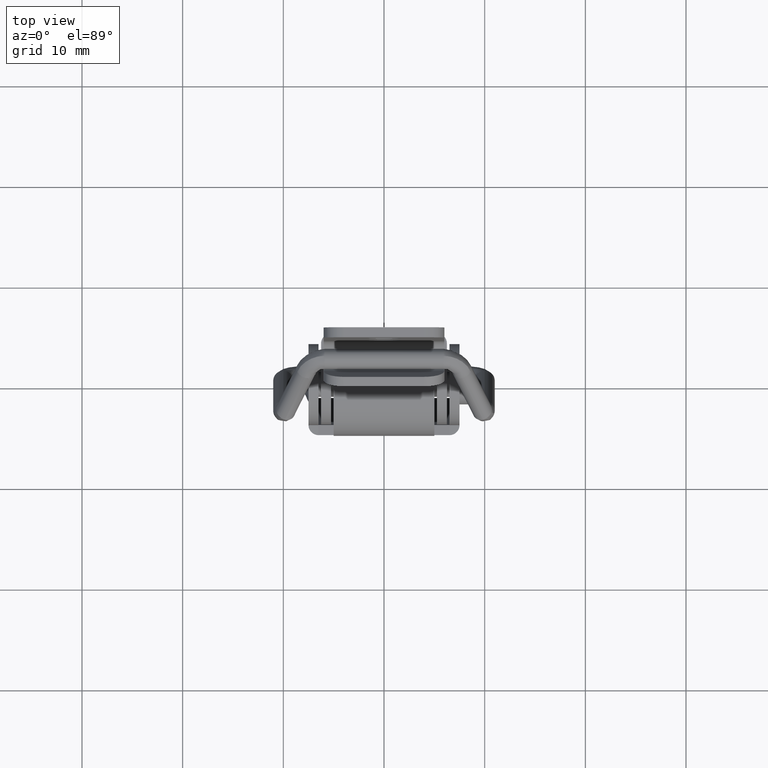
[diagram: clean part render]
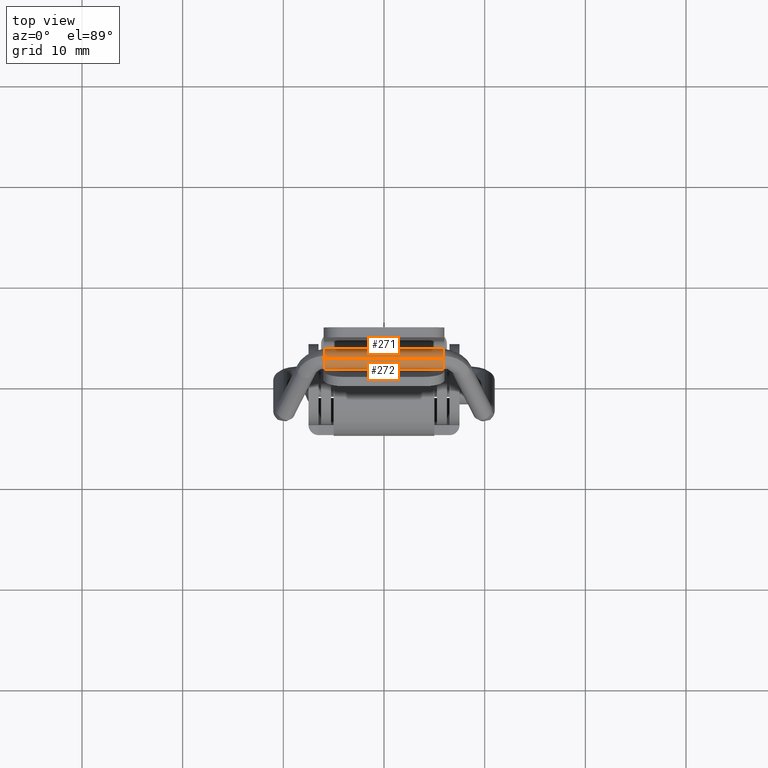
[diagram: same view with one multi-face feature highlighted, each face labeled with its STEP entity id]
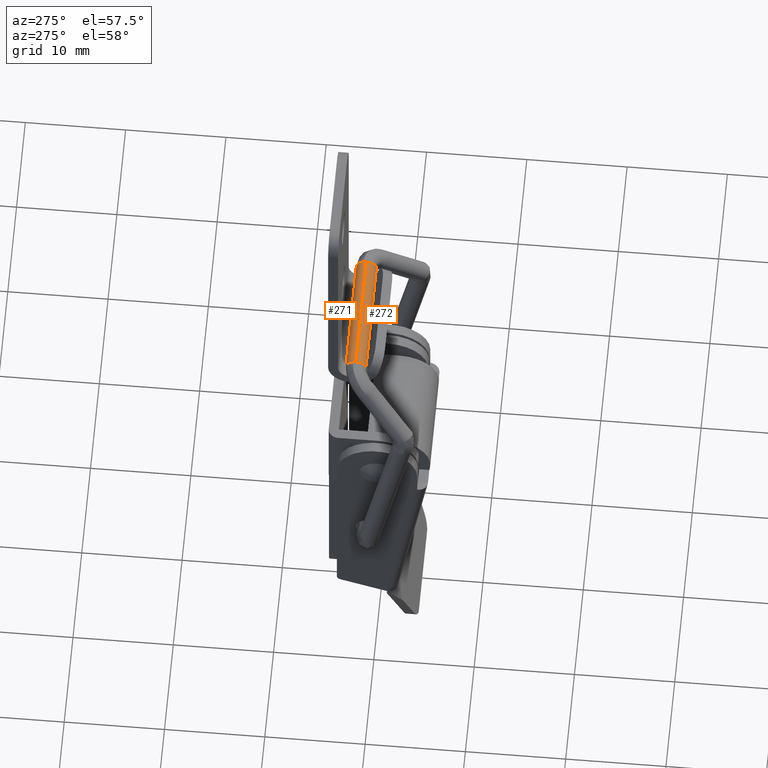
[diagram: same view with one multi-face feature highlighted, each face labeled with its STEP entity id]
A machine part, top view. The highlighted faces form ONE feature: a constant-radius fillet chain: 2 tangent blend faces with common blend radius 1 mm. The faces share edges in the B-rep.
A second angle (auxiliary view) of the same feature is appended — it is thin or edge-on in the first view.
Their STEP definitions:
[1] entity #272 (Cylinder):
#272=ADVANCED_FACE('',(#1188),#1187,.T.);
#1187=CYLINDRICAL_SURFACE('',#2476,1.00000000000E+00);
#1188=FACE_OUTER_BOUND('',#2477,.T.);
#2473=CARTESIAN_POINT('',(-5.90590531382E+00,-2.01829030919E-08,5.76952964570E-08));
#2474=DIRECTION('',(-1.00000000000E+00,6.47935677436E-13,7.26675753448E-13));
#2475=DIRECTION('',(7.26675753448E-13,-0.00000000000E+00,1.00000000000E+00));
#2476=AXIS2_PLACEMENT_3D('',#2473,#2474,#2475);
#2477=EDGE_LOOP('',(#4070,#4071,#4072,#4073,#4074,#4075));
#4070=ORIENTED_EDGE('',*,*,#4524,.F.);
#4071=ORIENTED_EDGE('',*,*,#4525,.F.);
#4072=ORIENTED_EDGE('',*,*,#4520,.T.);
#4073=ORIENTED_EDGE('',*,*,#4526,.T.);
#4074=ORIENTED_EDGE('',*,*,#4527,.T.);
#4075=ORIENTED_EDGE('',*,*,#4523,.F.);
#4520=EDGE_CURVE('',#6208,#6201,#6209,.T.);
#4523=EDGE_CURVE('',#6222,#6193,#6229,.T.);
#4524=EDGE_CURVE('',#6235,#6222,#6236,.T.);
#4525=EDGE_CURVE('',#6208,#6235,#6242,.T.);
#4526=EDGE_CURVE('',#6201,#6248,#6249,.T.);
#4527=EDGE_CURVE('',#6248,#6193,#6255,.T.);
#6193=VERTEX_POINT('',#7904);
#6201=VERTEX_POINT('',#7916);
#6208=VERTEX_POINT('',#7921);
#6209=(BOUNDED_CURVE() B_SPLINE_CURVE(1,(#7922,#7923),.UNSPECIFIED.,.F.,.F.) B_SPLINE_CURVE_WITH_KNOTS((2,2),(8.33333343261E-02,9.16666667006E-01),.UNSPECIFIED.) CURVE() GEOMETRIC_REPRESENTATION_ITEM() RATIONAL_B_SPLINE_CURVE((1.00000000000E+00,1.00000000000E+00)) REPRESENTATION_ITEM('') );
#6222=VERTEX_POINT('',#7929);
#6229=(BOUNDED_CURVE() B_SPLINE_CURVE(1,(#7940,#7941),.UNSPECIFIED.,.F.,.F.) B_SPLINE_CURVE_WITH_KNOTS((2,2),(8.33333333334E-02,9.16666666667E-01),.UNSPECIFIED.) CURVE() GEOMETRIC_REPRESENTATION_ITEM() RATIONAL_B_SPLINE_CURVE((7.50000000000E-01,7.50000000000E-01)) REPRESENTATION_ITEM('') );
#6235=VERTEX_POINT('',#7942);
#6236=(BOUNDED_CURVE() B_SPLINE_CURVE(3,(#7943,#7944,#7945,#7946),.UNSPECIFIED.,.F.,.F.) B_SPLINE_CURVE_WITH_KNOTS((4,4),(-4.99999603741E-01,-4.56112238719E-01),.UNSPECIFIED.) CURVE() GEOMETRIC_REPRESENTATION_ITEM() RATIONAL_B_SPLINE_CURVE((1.00000000000E+00,1.00000000000E+00,1.00000000000E+00,1.00000000000E+00)) REPRESENTATION_ITEM('') );
#6242=(BOUNDED_CURVE() B_SPLINE_CURVE(3,(#7947,#7948,#7949,#7950,#7951,#7952,#7953,#7954,#7955,#7956),.UNSPECIFIED.,.F.,.F.) B_SPLINE_CURVE_WITH_KNOTS((4,2,2,2,4),(-9.56110157781E-01,-8.75000000000E-01,-7.50000000000E-01,-6.25000000000E-01,-4.99999603741E-01),.UNSPECIFIED.) CURVE() GEOMETRIC_REPRESENTATION_ITEM() RATIONAL_B_SPLINE_CURVE((1.00000000000E+00,1.00000000000E+00,1.00000000000E+00,1.00000000000E+00,1.00000000000E+00,1.00000000000E+00,1.00000000000E+00,1.00000000000E+00,1.00000000000E+00,1.00000000000E+00)) REPRESENTATION_ITEM('') );
#6248=VERTEX_POINT('',#7957);
#6249=(BOUNDED_CURVE() B_SPLINE_CURVE(3,(#7958,#7959,#7960,#7961,#7962,#7963,#7964,#7965,#7966,#7967),.UNSPECIFIED.,.F.,.F.) B_SPLINE_CURVE_WITH_KNOTS((4,2,2,2,4),(4.38898422194E-02,1.25000000000E-01,2.50000000000E-01,3.75000000000E-01,5.00000396257E-01),.UNSPECIFIED.) CURVE() GEOMETRIC_REPRESENTATION_ITEM() RATIONAL_B_SPLINE_CURVE((1.00000000000E+00,1.00000000000E+00,1.00000000000E+00,1.00000000000E+00,1.00000000000E+00,1.00000000000E+00,1.00000000000E+00,1.00000000000E+00,1.00000000000E+00,1.00000000000E+00)) REPRESENTATION_ITEM('') );
#6255=(BOUNDED_CURVE() B_SPLINE_CURVE(3,(#7968,#7969,#7970,#7971),.UNSPECIFIED.,.F.,.F.) B_SPLINE_CURVE_WITH_KNOTS((4,4),(5.00000396257E-01,5.43887761278E-01),.UNSPECIFIED.) CURVE() GEOMETRIC_REPRESENTATION_ITEM() RATIONAL_B_SPLINE_CURVE((1.00000000000E+00,1.00000000000E+00,1.00000000000E+00,1.00000000000E+00)) REPRESENTATION_ITEM('') );
#7904=CARTESIAN_POINT('',(-5.90590531382E+00,-1.53282539261E-05,-9.99189136425E-01));
#7916=CARTESIAN_POINT('',(-5.90590531381E+00,2.21838568136E-06,9.99189215818E-01));
#7921=CARTESIAN_POINT('',(5.90590531382E+00,2.21837803992E-06,9.99189215802E-01));
#7922=CARTESIAN_POINT('',(5.90590529975E+00,-2.01905563854E-08,1.00000005769E+00));
#7923=CARTESIAN_POINT('',(-5.90590531863E+00,-2.01829030919E-08,1.00000005770E+00));
#7929=CARTESIAN_POINT('',(5.90590531381E+00,-1.53282614206E-05,-9.99189136441E-01));
#7940=CARTESIAN_POINT('',(5.90590531381E+00,-2.01905564305E-08,-9.99999942313E-01));
#7941=CARTESIAN_POINT('',(-5.90590531382E+00,-2.01829031080E-08,-9.99999942305E-01));
#7942=CARTESIAN_POINT('',(5.90590531381E+00,-2.72212585998E-01,-9.62237085141E-01));
#7943=CARTESIAN_POINT('',(5.90590531381E+00,-2.72214183164E-01,-9.62236633309E-01));
#7944=CARTESIAN_POINT('',(5.90590531381E+00,-1.83767829863E-01,-9.87257947234E-01));
#7945=CARTESIAN_POINT('',(5.90590531381E+00,-9.18953972587E-02,-9.99441618244E-01));
#7946=CARTESIAN_POINT('',(5.90590531381E+00,-1.53282614206E-05,-9.99189136441E-01));
#7947=CARTESIAN_POINT('',(5.90590531382E+00,2.21837803992E-06,9.99189215802E-01));
#7948=CARTESIAN_POINT('',(5.90590531382E+00,-1.69803821712E-01,9.98720417826E-01));
#7949=CARTESIAN_POINT('',(5.90590531382E+00,-3.39635390978E-01,9.55775090816E-01));
#7950=CARTESIAN_POINT('',(5.90590531382E+00,-7.16440703729E-01,7.45152167277E-01));
#7951=CARTESIAN_POINT('',(5.90590531382E+00,-8.90970774989E-01,5.24127936698E-01));
#7952=CARTESIAN_POINT('',(5.90590531381E+00,-1.03350219555E+00,2.03021017514E-02));
#7953=CARTESIAN_POINT('',(5.90590531381E+00,-1.00062586021E+00,-2.59397027407E-01));
#7954=CARTESIAN_POINT('',(5.90590531381E+00,-7.45152129800E-01,-7.16440625848E-01));
#7955=CARTESIAN_POINT('',(5.90590531381E+00,-5.24127899220E-01,-8.90970697109E-01));
#7956=CARTESIAN_POINT('',(5.90590531381E+00,-2.72214183164E-01,-9.62236633309E-01));
#7957=CARTESIAN_POINT('',(-5.90590531382E+00,-2.72212585988E-01,-9.62237085122E-01));
#7958=CARTESIAN_POINT('',(-5.90590531381E+00,2.21838568136E-06,9.99189215818E-01));
#7959=CARTESIAN_POINT('',(-5.90590531381E+00,-1.69803821702E-01,9.98720417840E-01));
#7960=CARTESIAN_POINT('',(-5.90590531381E+00,-3.39635390967E-01,9.55775090829E-01));
#7961=CARTESIAN_POINT('',(-5.90590531381E+00,-7.16440703715E-01,7.45152167289E-01));
#7962=CARTESIAN_POINT('',(-5.90590531382E+00,-8.90970774974E-01,5.24127936708E-01));
#7963=CARTESIAN_POINT('',(-5.90590531382E+00,-1.03350219554E+00,2.03021017605E-02));
#7964=CARTESIAN_POINT('',(-5.90590531382E+00,-1.00062586019E+00,-2.59397027398E-01));
#7965=CARTESIAN_POINT('',(-5.90590531382E+00,-7.45152129776E-01,-7.16440625837E-01));
#7966=CARTESIAN_POINT('',(-5.90590531382E+00,-5.24127899196E-01,-8.90970697096E-01));
#7967=CARTESIAN_POINT('',(-5.90590531382E+00,-2.72214183144E-01,-9.62236633293E-01));
#7968=CARTESIAN_POINT('',(-5.90590531382E+00,-2.72214183144E-01,-9.62236633293E-01));
#7969=CARTESIAN_POINT('',(-5.90590531382E+00,-1.83767829843E-01,-9.87257947217E-01));
#7970=CARTESIAN_POINT('',(-5.90590531382E+00,-9.18953972453E-02,-9.99441618227E-01));
#7971=CARTESIAN_POINT('',(-5.90590531382E+00,-1.53282539261E-05,-9.99189136425E-01));
[2] entity #271 (Cylinder):
#271=ADVANCED_FACE('',(#1178),#1177,.T.);
#1177=CYLINDRICAL_SURFACE('',#2471,1.00000000000E+00);
#1178=FACE_OUTER_BOUND('',#2472,.T.);
#2468=CARTESIAN_POINT('',(-5.90590531382E+00,-2.01829030919E-08,5.76952964570E-08));
#2469=DIRECTION('',(-1.00000000000E+00,6.47935677436E-13,7.26675753448E-13));
#2470=DIRECTION('',(7.26675753448E-13,-0.00000000000E+00,1.00000000000E+00));
#2471=AXIS2_PLACEMENT_3D('',#2468,#2469,#2470);
#2472=EDGE_LOOP('',(#4064,#4065,#4066,#4067,#4068,#4069));
#4064=ORIENTED_EDGE('',*,*,#4518,.T.);
#4065=ORIENTED_EDGE('',*,*,#4519,.T.);
#4066=ORIENTED_EDGE('',*,*,#4520,.F.);
#4067=ORIENTED_EDGE('',*,*,#4521,.F.);
#4068=ORIENTED_EDGE('',*,*,#4522,.F.);
#4069=ORIENTED_EDGE('',*,*,#4523,.T.);
#4518=EDGE_CURVE('',#6193,#6194,#6195,.T.);
#4519=EDGE_CURVE('',#6194,#6201,#6202,.T.);
#4520=EDGE_CURVE('',#6208,#6201,#6209,.T.);
#4521=EDGE_CURVE('',#6215,#6208,#6216,.T.);
#4522=EDGE_CURVE('',#6222,#6215,#6223,.T.);
#4523=EDGE_CURVE('',#6222,#6193,#6229,.T.);
#6193=VERTEX_POINT('',#7904);
#6194=VERTEX_POINT('',#7905);
#6195=(BOUNDED_CURVE() B_SPLINE_CURVE(3,(#7906,#7907,#7908,#7909,#7910,#7911,#7912,#7913,#7914,#7915),.UNSPECIFIED.,.F.,.F.) B_SPLINE_CURVE_WITH_KNOTS((4,2,2,2,4),(5.43887761278E-01,6.25000000000E-01,7.50000000000E-01,8.75000000000E-01,1.00000000000E+00),.UNSPECIFIED.) CURVE() GEOMETRIC_REPRESENTATION_ITEM() RATIONAL_B_SPLINE_CURVE((1.00000000000E+00,1.00000000000E+00,1.00000000000E+00,1.00000000000E+00,1.00000000000E+00,1.00000000000E+00,1.00000000000E+00,1.00000000000E+00,1.00000000000E+00,1.00000000000E+00)) REPRESENTATION_ITEM('') );
#6201=VERTEX_POINT('',#7916);
#6202=(BOUNDED_CURVE() B_SPLINE_CURVE(3,(#7917,#7918,#7919,#7920),.UNSPECIFIED.,.F.,.F.) B_SPLINE_CURVE_WITH_KNOTS((4,4),(0.00000000000E+00,4.38898422194E-02),.UNSPECIFIED.) CURVE() GEOMETRIC_REPRESENTATION_ITEM() RATIONAL_B_SPLINE_CURVE((1.00000000000E+00,1.00000000000E+00,1.00000000000E+00,1.00000000000E+00)) REPRESENTATION_ITEM('') );
#6208=VERTEX_POINT('',#7921);
#6209=(BOUNDED_CURVE() B_SPLINE_CURVE(1,(#7922,#7923),.UNSPECIFIED.,.F.,.F.) B_SPLINE_CURVE_WITH_KNOTS((2,2),(8.33333343261E-02,9.16666667006E-01),.UNSPECIFIED.) CURVE() GEOMETRIC_REPRESENTATION_ITEM() RATIONAL_B_SPLINE_CURVE((1.00000000000E+00,1.00000000000E+00)) REPRESENTATION_ITEM('') );
#6215=VERTEX_POINT('',#7924);
#6216=(BOUNDED_CURVE() B_SPLINE_CURVE(3,(#7925,#7926,#7927,#7928),.UNSPECIFIED.,.F.,.F.) B_SPLINE_CURVE_WITH_KNOTS((4,4),(-1.00000000000E+00,-9.56110157781E-01),.UNSPECIFIED.) CURVE() GEOMETRIC_REPRESENTATION_ITEM() RATIONAL_B_SPLINE_CURVE((1.00000000000E+00,1.00000000000E+00,1.00000000000E+00,1.00000000000E+00)) REPRESENTATION_ITEM('') );
#6222=VERTEX_POINT('',#7929);
#6223=(BOUNDED_CURVE() B_SPLINE_CURVE(3,(#7930,#7931,#7932,#7933,#7934,#7935,#7936,#7937,#7938,#7939),.UNSPECIFIED.,.F.,.F.) B_SPLINE_CURVE_WITH_KNOTS((4,2,2,2,4),(-4.56112238719E-01,-3.75000000000E-01,-2.50000000000E-01,-1.25000000000E-01,-0.00000000000E+00),.UNSPECIFIED.) CURVE() GEOMETRIC_REPRESENTATION_ITEM() RATIONAL_B_SPLINE_CURVE((1.00000000000E+00,1.00000000000E+00,1.00000000000E+00,1.00000000000E+00,1.00000000000E+00,1.00000000000E+00,1.00000000000E+00,1.00000000000E+00,1.00000000000E+00,1.00000000000E+00)) REPRESENTATION_ITEM('') );
#6229=(BOUNDED_CURVE() B_SPLINE_CURVE(1,(#7940,#7941),.UNSPECIFIED.,.F.,.F.) B_SPLINE_CURVE_WITH_KNOTS((2,2),(8.33333333334E-02,9.16666666667E-01),.UNSPECIFIED.) CURVE() GEOMETRIC_REPRESENTATION_ITEM() RATIONAL_B_SPLINE_CURVE((7.50000000000E-01,7.50000000000E-01)) REPRESENTATION_ITEM('') );
#7904=CARTESIAN_POINT('',(-5.90590531382E+00,-1.53282539261E-05,-9.99189136425E-01));
#7905=CARTESIAN_POINT('',(-5.90590531381E+00,2.72214941356E-01,9.62236522766E-01));
#7906=CARTESIAN_POINT('',(-5.90590531382E+00,-1.53282539261E-05,-9.99189136425E-01));
#7907=CARTESIAN_POINT('',(-5.90590531382E+00,1.69795067011E-01,-9.98722506012E-01));
#7908=CARTESIAN_POINT('',(-5.90590531382E+00,3.39631546277E-01,-9.55777101942E-01));
#7909=CARTESIAN_POINT('',(-5.90590531381E+00,7.16440663350E-01,-7.45152051898E-01));
#7910=CARTESIAN_POINT('',(-5.90590531381E+00,8.90970734608E-01,-5.24127821318E-01));
#7911=CARTESIAN_POINT('',(-5.90590531381E+00,1.03350215517E+00,-2.03019863699E-02));
#7912=CARTESIAN_POINT('',(-5.90590531381E+00,1.00062581983E+00,2.59397142788E-01));
#7913=CARTESIAN_POINT('',(-5.90590531381E+00,7.45152089411E-01,7.16440741228E-01));
#7914=CARTESIAN_POINT('',(-5.90590531381E+00,5.24127858830E-01,8.90970812487E-01));
#7915=CARTESIAN_POINT('',(-5.90590531381E+00,2.72214941356E-01,9.62236522767E-01));
#7916=CARTESIAN_POINT('',(-5.90590531381E+00,2.21838568136E-06,9.99189215818E-01));
#7917=CARTESIAN_POINT('',(-5.90590531381E+00,2.72214941356E-01,9.62236522767E-01));
#7918=CARTESIAN_POINT('',(-5.90590531381E+00,1.83763595749E-01,9.87259249006E-01));
#7919=CARTESIAN_POINT('',(-5.90590531381E+00,9.18866445943E-02,9.99442888968E-01));
#7920=CARTESIAN_POINT('',(-5.90590531381E+00,2.21838568136E-06,9.99189215818E-01));
#7921=CARTESIAN_POINT('',(5.90590531382E+00,2.21837803992E-06,9.99189215802E-01));
#7922=CARTESIAN_POINT('',(5.90590529975E+00,-2.01905563854E-08,1.00000005769E+00));
#7923=CARTESIAN_POINT('',(-5.90590531863E+00,-2.01829030919E-08,1.00000005770E+00));
#7924=CARTESIAN_POINT('',(5.90590531382E+00,2.72214941346E-01,9.62236522754E-01));
#7925=CARTESIAN_POINT('',(5.90590531382E+00,2.72214941344E-01,9.62236522749E-01));
#7926=CARTESIAN_POINT('',(5.90590531382E+00,1.83763595738E-01,9.87259248989E-01));
#7927=CARTESIAN_POINT('',(5.90590531382E+00,9.18866445853E-02,9.99442888951E-01));
#7928=CARTESIAN_POINT('',(5.90590531382E+00,2.21837803992E-06,9.99189215802E-01));
#7929=CARTESIAN_POINT('',(5.90590531381E+00,-1.53282614206E-05,-9.99189136441E-01));
#7930=CARTESIAN_POINT('',(5.90590531381E+00,-1.53282614206E-05,-9.99189136441E-01));
#7931=CARTESIAN_POINT('',(5.90590531381E+00,1.69795066997E-01,-9.98722506027E-01));
#7932=CARTESIAN_POINT('',(5.90590531381E+00,3.39631546257E-01,-9.55777101958E-01));
#7933=CARTESIAN_POINT('',(5.90590531382E+00,7.16440663326E-01,-7.45152051919E-01));
#7934=CARTESIAN_POINT('',(5.90590531382E+00,8.90970734586E-01,-5.24127821340E-01));
#7935=CARTESIAN_POINT('',(5.90590531382E+00,1.03350215515E+00,-2.03019863930E-02));
#7936=CARTESIAN_POINT('',(5.90590531382E+00,1.00062581981E+00,2.59397142765E-01));
#7937=CARTESIAN_POINT('',(5.90590531382E+00,7.45152089397E-01,7.16440741207E-01));
#7938=CARTESIAN_POINT('',(5.90590531382E+00,5.24127858817E-01,8.90970812467E-01));
#7939=CARTESIAN_POINT('',(5.90590531382E+00,2.72214941344E-01,9.62236522749E-01));
#7940=CARTESIAN_POINT('',(5.90590531381E+00,-2.01905564305E-08,-9.99999942313E-01));
#7941=CARTESIAN_POINT('',(-5.90590531382E+00,-2.01829031080E-08,-9.99999942305E-01));